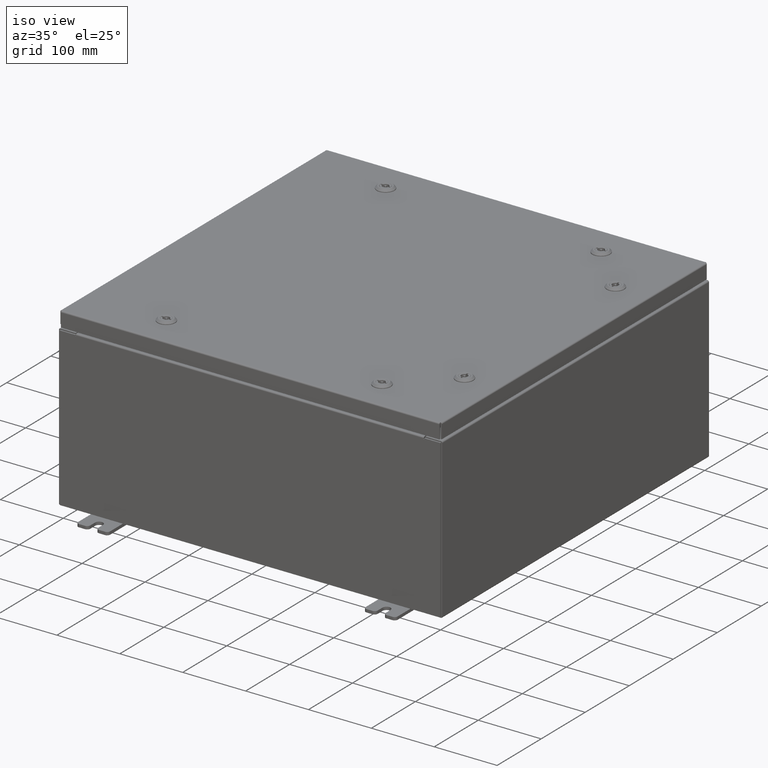
[diagram: clean part render]
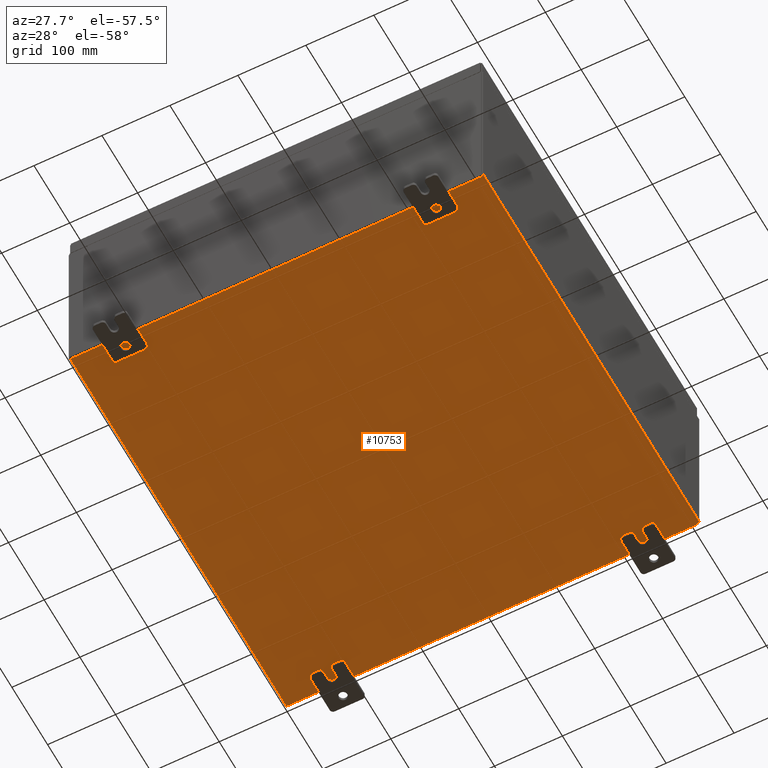
[diagram: tour spotlight — one face highlighted and labeled with its STEP entity id]
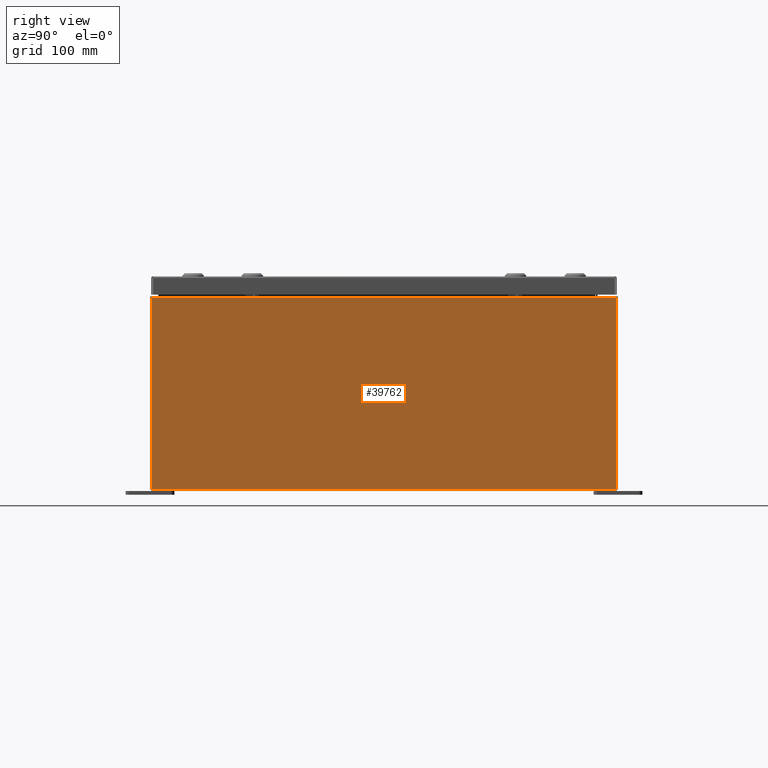
[diagram: tour spotlight — one face highlighted and labeled with its STEP entity id]
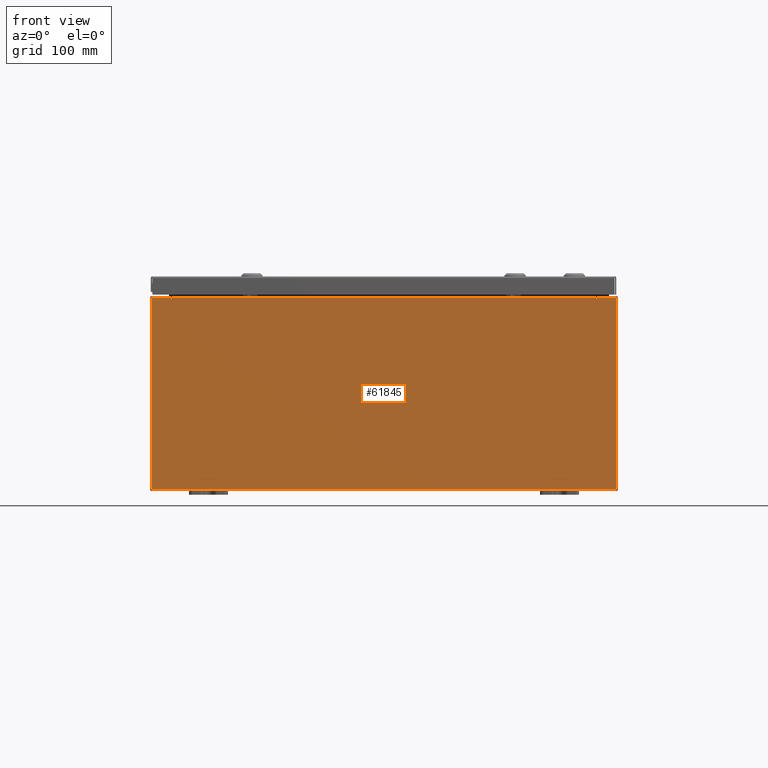
[diagram: tour spotlight — one face highlighted and labeled with its STEP entity id]
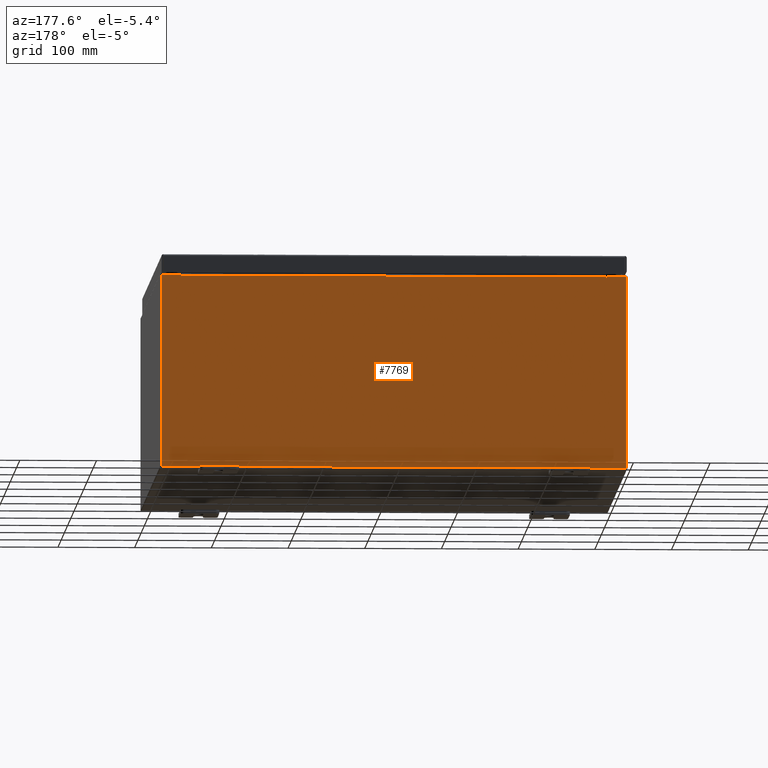
[diagram: tour spotlight — one face highlighted and labeled with its STEP entity id]
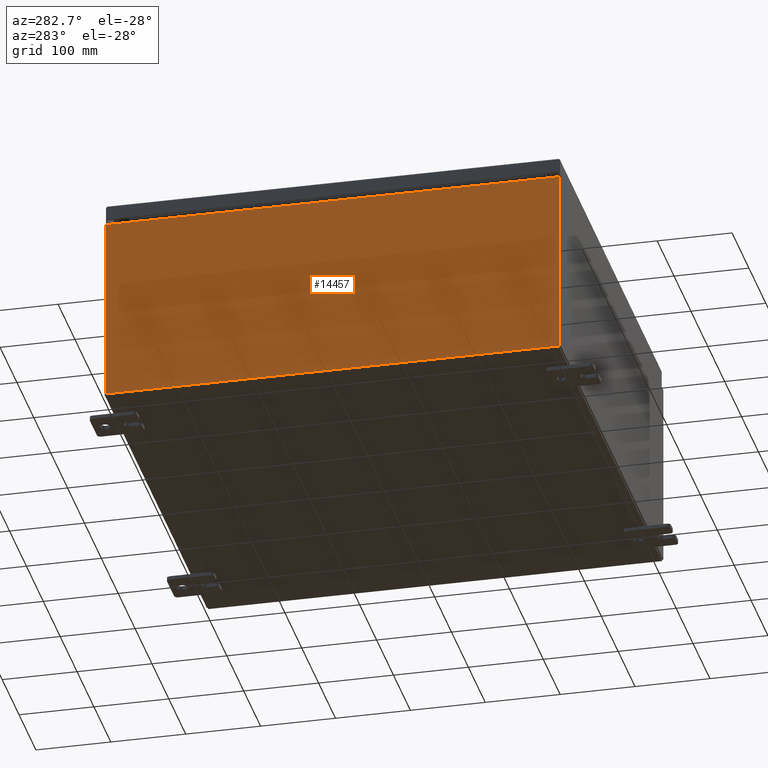
[diagram: tour spotlight — one face highlighted and labeled with its STEP entity id]
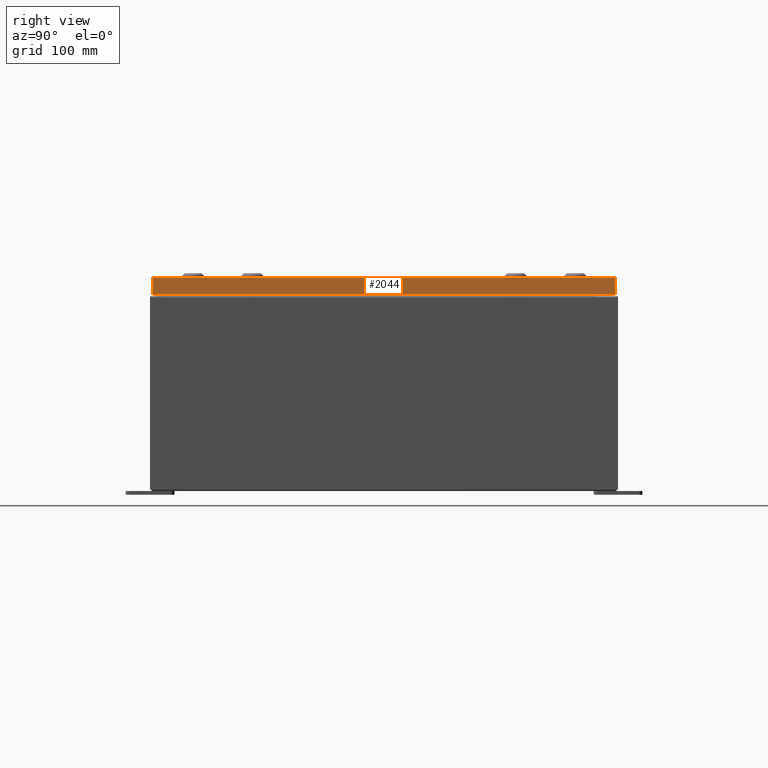
[diagram: tour spotlight — one face highlighted and labeled with its STEP entity id]
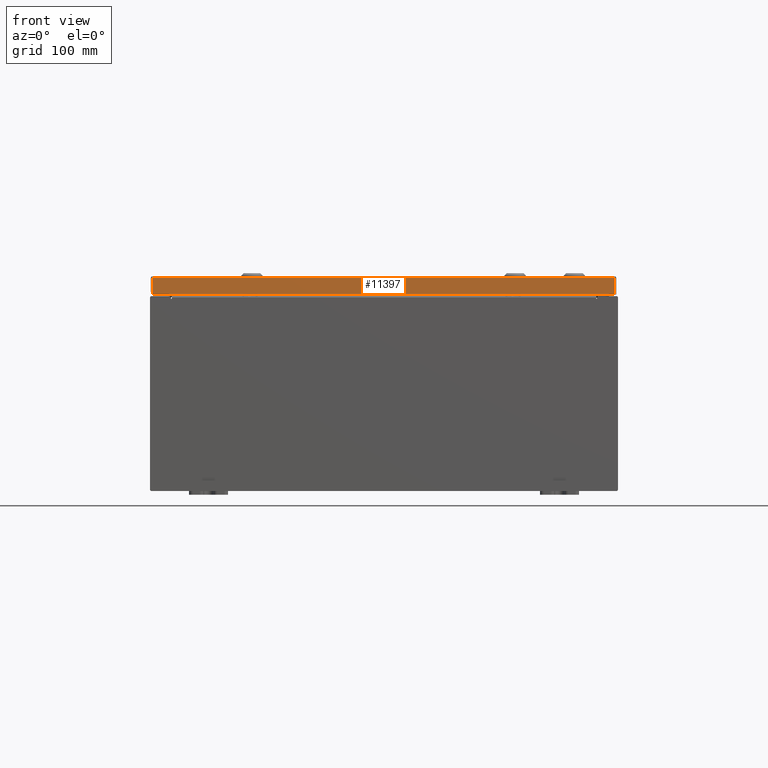
[diagram: tour spotlight — one face highlighted and labeled with its STEP entity id]
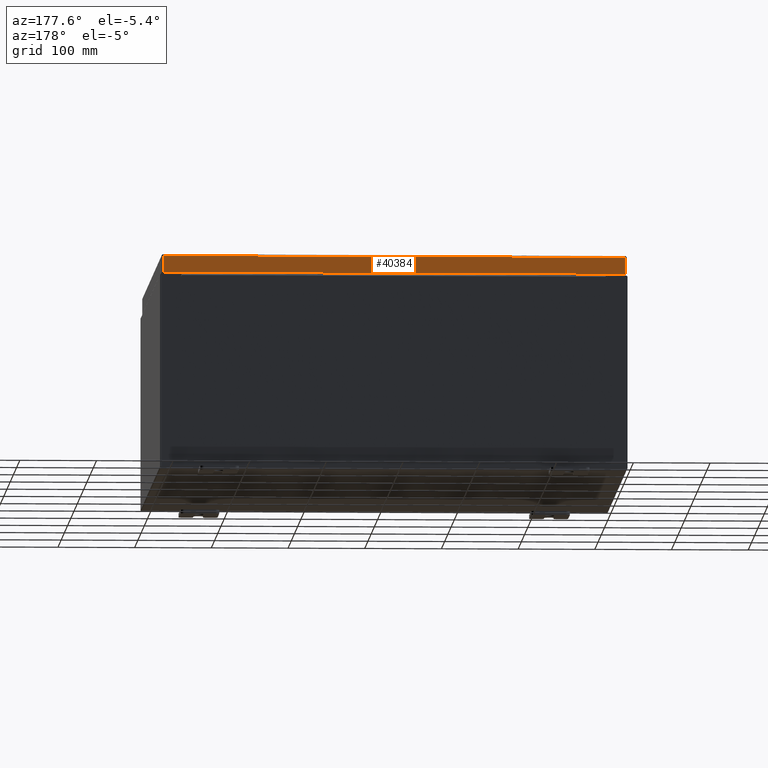
[diagram: tour spotlight — one face highlighted and labeled with its STEP entity id]
A machine part: a face-by-face anatomy tour. The part has 5420 B-rep faces; the first image is the clean iso view, then the 8 largest visible faces are spotlighted one at a time (largest first), each with its STEP entity span.

Face 1 — auxiliary view, entity #10753. In plain terms, the highlighted planar face has unit normal (0, 0, -1).
Definition (entity closure, byte-faithful):
#2110 = ORIENTED_EDGE ( 'NONE', *, *, #20622, .T. ) ;
#6040 = EDGE_CURVE ( 'NONE', #26476, #6079, #46606, .T. ) ;
#6079 = VERTEX_POINT ( 'NONE', #33568 ) ;
#6168 = DIRECTION ( 'NONE',  ( -1.000000000000000000, 0.0000000000000000000, -0.0000000000000000000 ) ) ;
#10496 = VECTOR ( 'NONE', #33818, 39.37007874015748100 ) ;
#10753 = ADVANCED_FACE ( 'NONE', ( #19597 ), #50120, .T. ) ;
#15869 = CARTESIAN_POINT ( 'NONE',  ( 0.0000000000000000000, 0.0000000000000000000, -0.07470000000000000300 ) ) ;
#18428 = VERTEX_POINT ( 'NONE', #48761 ) ;
#19597 = FACE_OUTER_BOUND ( 'NONE', #58767, .T. ) ;
#20051 = VECTOR ( 'NONE', #47949, 39.37007874015748100 ) ;
#20622 = EDGE_CURVE ( 'NONE', #26476, #18428, #59128, .T. ) ;
#22107 = CARTESIAN_POINT ( 'NONE',  ( -11.91230000000000400, -11.92530000000000000, -0.07469999999999994700 ) ) ;
#22382 = VECTOR ( 'NONE', #30771, 39.37007874015748100 ) ;
#23558 = LINE ( 'NONE', #63152, #10496 ) ;
#26476 = VERTEX_POINT ( 'NONE', #22107 ) ;
#26741 = CARTESIAN_POINT ( 'NONE',  ( 11.91229999999999800, 11.92529999999999800, -0.07469999999999994700 ) ) ;
#28900 = CARTESIAN_POINT ( 'NONE',  ( -12.00000000000000400, -11.92530000000000400, -0.07470000000000000300 ) ) ;
#29284 = LINE ( 'NONE', #26741, #22382 ) ;
#30771 = DIRECTION ( 'NONE',  ( -0.0000000000000000000, -1.000000000000000000, -0.0000000000000000000 ) ) ;
#30813 = DIRECTION ( 'NONE',  ( 1.000000000000000000, 0.0000000000000000000, 0.0000000000000000000 ) ) ;
#33031 = ORIENTED_EDGE ( 'NONE', *, *, #6040, .F. ) ;
#33568 = CARTESIAN_POINT ( 'NONE',  ( 11.91229999999998900, -11.92530000000000400, -0.07470000000000000300 ) ) ;
#33818 = DIRECTION ( 'NONE',  ( -1.000000000000000000, -0.0000000000000000000, -0.0000000000000000000 ) ) ;
#35540 = DIRECTION ( 'NONE',  ( 0.0000000000000000000, 0.0000000000000000000, -1.000000000000000000 ) ) ;
#36619 = VECTOR ( 'NONE', #30813, 39.37007874015748100 ) ;
#42184 = EDGE_CURVE ( 'NONE', #53961, #18428, #23558, .T. ) ;
#46606 = LINE ( 'NONE', #28900, #36619 ) ;
#46692 = ORIENTED_EDGE ( 'NONE', *, *, #47940, .T. ) ;
#47940 = EDGE_CURVE ( 'NONE', #53961, #6079, #29284, .T. ) ;
#47949 = DIRECTION ( 'NONE',  ( -0.0000000000000000000, 1.000000000000000000, -0.0000000000000000000 ) ) ;
#48761 = CARTESIAN_POINT ( 'NONE',  ( -11.91230000000000400, 11.92529999999999800, -0.07470000000000000300 ) ) ;
#50120 = PLANE ( 'NONE',  #58706 ) ;
#52897 = CARTESIAN_POINT ( 'NONE',  ( -11.91230000000000400, -11.92530000000000400, -0.07469999999999994700 ) ) ;
#53961 = VERTEX_POINT ( 'NONE', #63209 ) ;
#58706 = AXIS2_PLACEMENT_3D ( 'NONE', #15869, #35540, #6168 ) ;
#58767 = EDGE_LOOP ( 'NONE', ( #33031, #2110, #59097, #46692 ) ) ;
#59097 = ORIENTED_EDGE ( 'NONE', *, *, #42184, .F. ) ;
#59128 = LINE ( 'NONE', #52897, #20051 ) ;
#63152 = CARTESIAN_POINT ( 'NONE',  ( -12.00000000000000400, 11.92529999999999800, -0.07470000000000000300 ) ) ;
#63209 = CARTESIAN_POINT ( 'NONE',  ( 11.91229999999999800, 11.92529999999999600, -0.07469999999999994700 ) ) ;

Face 2 — right view, entity #39762. In plain terms, the highlighted planar face has unit normal (-1, 0, 0).
Definition (entity closure, byte-faithful):
#584 = LINE ( 'NONE', #48699, #12136 ) ;
#602 = CARTESIAN_POINT ( 'NONE',  ( 12.00000000000003400, 11.92529999999999600, 9.837599999999993000 ) ) ;
#5124 = DIRECTION ( 'NONE',  ( -3.523082860860888200E-015, 0.0000000000000000000, -1.000000000000000000 ) ) ;
#5744 = EDGE_CURVE ( 'NONE', #54195, #11226, #584, .T. ) ;
#11226 = VERTEX_POINT ( 'NONE', #15118 ) ;
#11494 = DIRECTION ( 'NONE',  ( 3.523082860860887800E-015, 0.0000000000000000000, 1.000000000000000000 ) ) ;
#12136 = VECTOR ( 'NONE', #42755, 39.37007874015748100 ) ;
#12846 = VERTEX_POINT ( 'NONE', #18539 ) ;
#15118 = CARTESIAN_POINT ( 'NONE',  ( 12.00000000000003400, -11.92530000000000400, 9.837600000000000100 ) ) ;
#17288 = AXIS2_PLACEMENT_3D ( 'NONE', #21126, #40810, #11494 ) ;
#17649 = VERTEX_POINT ( 'NONE', #28373 ) ;
#18539 = CARTESIAN_POINT ( 'NONE',  ( 11.99999999999999800, -11.92530000000000400, 0.01299999999999984300 ) ) ;
#19803 = LINE ( 'NONE', #28776, #45827 ) ;
#20160 = ORIENTED_EDGE ( 'NONE', *, *, #48205, .F. ) ;
#21126 = CARTESIAN_POINT ( 'NONE',  ( 11.99999999999999800, 0.0000000000000000000, -4.253780798634222800E-014 ) ) ;
#21583 = VECTOR ( 'NONE', #38544, 39.37007874015748100 ) ;
#22246 = VECTOR ( 'NONE', #5124, 39.37007874015748100 ) ;
#26102 = PLANE ( 'NONE',  #17288 ) ;
#28373 = CARTESIAN_POINT ( 'NONE',  ( 11.99999999999999800, 11.92529999999999600, 0.01299999999999984700 ) ) ;
#28776 = CARTESIAN_POINT ( 'NONE',  ( 11.99999999999999800, 11.92529999999999800, -3.991194423380320200E-014 ) ) ;
#34503 = CARTESIAN_POINT ( 'NONE',  ( 11.99999999999999800, -11.92530000000000400, -4.253780798634222800E-014 ) ) ;
#38031 = EDGE_CURVE ( 'NONE', #11226, #12846, #48287, .T. ) ;
#38544 = DIRECTION ( 'NONE',  ( -0.0000000000000000000, -1.000000000000000000, -0.0000000000000000000 ) ) ;
#39762 = ADVANCED_FACE ( 'NONE', ( #45888 ), #26102, .F. ) ;
#40810 = DIRECTION ( 'NONE',  ( -1.000000000000000000, 0.0000000000000000000, 3.523082860860887800E-015 ) ) ;
#42755 = DIRECTION ( 'NONE',  ( -0.0000000000000000000, -1.000000000000000000, -0.0000000000000000000 ) ) ;
#44164 = EDGE_LOOP ( 'NONE', ( #49398, #59534, #20160, #55363 ) ) ;
#45827 = VECTOR ( 'NONE', #63006, 39.37007874015748100 ) ;
#45888 = FACE_OUTER_BOUND ( 'NONE', #44164, .T. ) ;
#48205 = EDGE_CURVE ( 'NONE', #17649, #12846, #60661, .T. ) ;
#48287 = LINE ( 'NONE', #34503, #22246 ) ;
#48699 = CARTESIAN_POINT ( 'NONE',  ( 12.00000000000003400, 11.92529999999999800, 9.837599999999993000 ) ) ;
#49398 = ORIENTED_EDGE ( 'NONE', *, *, #5744, .T. ) ;
#54195 = VERTEX_POINT ( 'NONE', #602 ) ;
#55363 = ORIENTED_EDGE ( 'NONE', *, *, #56873, .T. ) ;
#56873 = EDGE_CURVE ( 'NONE', #17649, #54195, #19803, .T. ) ;
#58067 = CARTESIAN_POINT ( 'NONE',  ( 11.99999999999999800, -11.92530000000000400, 0.01299999999999984700 ) ) ;
#59534 = ORIENTED_EDGE ( 'NONE', *, *, #38031, .T. ) ;
#60661 = LINE ( 'NONE', #58067, #21583 ) ;
#63006 = DIRECTION ( 'NONE',  ( 3.523082860860888200E-015, -2.201926788038055100E-016, 1.000000000000000000 ) ) ;

Face 3 — front view, entity #61845. In plain terms, the highlighted planar face has unit normal (-0, 1, -0).
Definition (entity closure, byte-faithful):
#289 = VERTEX_POINT ( 'NONE', #57623 ) ;
#504 = VECTOR ( 'NONE', #31224, 39.37007874015748100 ) ;
#664 = VERTEX_POINT ( 'NONE', #13163 ) ;
#1505 = ORIENTED_EDGE ( 'NONE', *, *, #50837, .T. ) ;
#1883 = EDGE_CURVE ( 'NONE', #43588, #664, #16989, .T. ) ;
#2341 = EDGE_CURVE ( 'NONE', #10516, #55766, #45283, .T. ) ;
#2988 = EDGE_CURVE ( 'NONE', #664, #16884, #13867, .T. ) ;
#4452 = VECTOR ( 'NONE', #35303, 39.37007874015748100 ) ;
#4716 = AXIS2_PLACEMENT_3D ( 'NONE', #17925, #52209, #22867 ) ;
#4935 = EDGE_CURVE ( 'NONE', #16884, #19532, #35145, .T. ) ;
#5121 = LINE ( 'NONE', #44922, #55750 ) ;
#6169 = VECTOR ( 'NONE', #12117, 39.37007874015748100 ) ;
#10426 = DIRECTION ( 'NONE',  ( -0.0000000000000000000, 1.000000000000000000, -0.0000000000000000000 ) ) ;
#10516 = VERTEX_POINT ( 'NONE', #43934 ) ;
#12117 = DIRECTION ( 'NONE',  ( 0.0000000000000000000, 0.0000000000000000000, 1.000000000000000000 ) ) ;
#12306 = VERTEX_POINT ( 'NONE', #55695 ) ;
#12582 = VECTOR ( 'NONE', #45687, 39.37007874015748100 ) ;
#12785 = ORIENTED_EDGE ( 'NONE', *, *, #2988, .T. ) ;
#13163 = CARTESIAN_POINT ( 'NONE',  ( 11.92530000000000000, 0.0000000000000000000, -4.925300000000000000 ) ) ;
#13612 = LINE ( 'NONE', #45771, #504 ) ;
#13867 = LINE ( 'NONE', #44100, #49858 ) ;
#14140 = CARTESIAN_POINT ( 'NONE',  ( 10.92455000000000000, 0.0000000000000000000, 4.874950000000000100 ) ) ;
#14352 = ORIENTED_EDGE ( 'NONE', *, *, #1883, .T. ) ;
#14500 = VERTEX_POINT ( 'NONE', #57401 ) ;
#14505 = CARTESIAN_POINT ( 'NONE',  ( -11.92530000000000000, 0.0000000000000000000, 4.925300000000000000 ) ) ;
#16151 = CARTESIAN_POINT ( 'NONE',  ( -10.88720000000000000, -7.171100983368691200E-016, 4.912300000000000100 ) ) ;
#16884 = VERTEX_POINT ( 'NONE', #19077 ) ;
#16989 = LINE ( 'NONE', #29562, #28506 ) ;
#17925 = CARTESIAN_POINT ( 'NONE',  ( -10.90587500000000000, 0.0000000000000000000, 4.874950000000000100 ) ) ;
#19077 = CARTESIAN_POINT ( 'NONE',  ( -11.92530000000000000, 0.0000000000000000000, -4.925300000000000000 ) ) ;
#19532 = VERTEX_POINT ( 'NONE', #60483 ) ;
#21240 = DIRECTION ( 'NONE',  ( -4.340572780400004900E-014, 0.0000000000000000000, -1.000000000000000000 ) ) ;
#21606 = CARTESIAN_POINT ( 'NONE',  ( 0.0000000000000000000, 0.0000000000000000000, 0.0000000000000000000 ) ) ;
#22677 = DIRECTION ( 'NONE',  ( 1.000000000000000000, 0.0000000000000000000, 0.0000000000000000000 ) ) ;
#22867 = DIRECTION ( 'NONE',  ( 0.0000000000000000000, 0.0000000000000000000, -1.000000000000000000 ) ) ;
#23396 = VECTOR ( 'NONE', #58588, 39.37007874015748100 ) ;
#23610 = EDGE_CURVE ( 'NONE', #41697, #55766, #62031, .T. ) ;
#24927 = ORIENTED_EDGE ( 'NONE', *, *, #23610, .T. ) ;
#25135 = VERTEX_POINT ( 'NONE', #14140 ) ;
#25493 = ORIENTED_EDGE ( 'NONE', *, *, #59438, .F. ) ;
#25721 = ORIENTED_EDGE ( 'NONE', *, *, #35131, .F. ) ;
#26705 = VECTOR ( 'NONE', #21240, 39.37007874015748100 ) ;
#28506 = VECTOR ( 'NONE', #44656, 39.37007874015748100 ) ;
#28695 = LINE ( 'NONE', #30929, #12582 ) ;
#28719 = ORIENTED_EDGE ( 'NONE', *, *, #52170, .T. ) ;
#29089 = ORIENTED_EDGE ( 'NONE', *, *, #4935, .T. ) ;
#29562 = CARTESIAN_POINT ( 'NONE',  ( 11.92530000000000000, 0.0000000000000000000, 4.925300000000000000 ) ) ;
#29731 = ORIENTED_EDGE ( 'NONE', *, *, #41058, .F. ) ;
#30929 = CARTESIAN_POINT ( 'NONE',  ( -11.92530000000000000, 0.0000000000000000000, 4.925300000000000000 ) ) ;
#31224 = DIRECTION ( 'NONE',  ( 0.0000000000000000000, 0.0000000000000000000, 1.000000000000000000 ) ) ;
#31450 = DIRECTION ( 'NONE',  ( 0.0000000000000000000, -0.0000000000000000000, -1.000000000000000000 ) ) ;
#32383 = CIRCLE ( 'NONE', #4716, 0.01867499999999949400 ) ;
#32767 = CARTESIAN_POINT ( 'NONE',  ( 11.92530000000000000, 0.0000000000000000000, 4.925300000000000000 ) ) ;
#34058 = DIRECTION ( 'NONE',  ( -1.000000000000000000, -0.0000000000000000000, -0.0000000000000000000 ) ) ;
#35131 = EDGE_CURVE ( 'NONE', #12306, #14500, #32383, .T. ) ;
#35145 = LINE ( 'NONE', #50865, #4452 ) ;
#35303 = DIRECTION ( 'NONE',  ( -0.0000000000000000000, -0.0000000000000000000, 1.000000000000000000 ) ) ;
#35443 = CARTESIAN_POINT ( 'NONE',  ( 10.88720000000000200, 0.0000000000000000000, 4.912300000000000100 ) ) ;
#36100 = CIRCLE ( 'NONE', #43775, 0.01867499999999949400 ) ;
#36371 = LINE ( 'NONE', #14505, #23396 ) ;
#36704 = EDGE_CURVE ( 'NONE', #25135, #10516, #36100, .T. ) ;
#39739 = ORIENTED_EDGE ( 'NONE', *, *, #59582, .F. ) ;
#39742 = CARTESIAN_POINT ( 'NONE',  ( 10.90587500000000200, 0.0000000000000000000, 4.874950000000000100 ) ) ;
#41058 = EDGE_CURVE ( 'NONE', #289, #25135, #52741, .T. ) ;
#41697 = VERTEX_POINT ( 'NONE', #16151 ) ;
#42347 = CARTESIAN_POINT ( 'NONE',  ( -10.88720000000000200, -7.171100983368691200E-016, 4.912300000000000100 ) ) ;
#43588 = VERTEX_POINT ( 'NONE', #32767 ) ;
#43775 = AXIS2_PLACEMENT_3D ( 'NONE', #39742, #10426, #44682 ) ;
#43934 = CARTESIAN_POINT ( 'NONE',  ( 10.88720000000000200, 0.0000000000000000000, 4.874950000000000100 ) ) ;
#44100 = CARTESIAN_POINT ( 'NONE',  ( -11.92530000000000000, 0.0000000000000000000, -4.925300000000000000 ) ) ;
#44656 = DIRECTION ( 'NONE',  ( 0.0000000000000000000, 0.0000000000000000000, -1.000000000000000000 ) ) ;
#44682 = DIRECTION ( 'NONE',  ( 0.0000000000000000000, 0.0000000000000000000, -1.000000000000000000 ) ) ;
#44847 = EDGE_LOOP ( 'NONE', ( #39739, #25721, #25493, #24927, #47060, #49837, #29731, #28719, #14352, #12785, #29089, #1505 ) ) ;
#44867 = CARTESIAN_POINT ( 'NONE',  ( -10.92454999999999800, 0.0000000000000000000, 4.925300000000000000 ) ) ;
#44922 = CARTESIAN_POINT ( 'NONE',  ( -10.88720000000000000, -0.0000000000000000000, 0.0000000000000000000 ) ) ;
#45283 = LINE ( 'NONE', #47348, #6169 ) ;
#45576 = VERTEX_POINT ( 'NONE', #44867 ) ;
#45687 = DIRECTION ( 'NONE',  ( 1.000000000000000000, 0.0000000000000000000, 0.0000000000000000000 ) ) ;
#45771 = CARTESIAN_POINT ( 'NONE',  ( -10.92454999999999800, -0.0000000000000000000, 0.0000000000000000000 ) ) ;
#47060 = ORIENTED_EDGE ( 'NONE', *, *, #2341, .F. ) ;
#47348 = CARTESIAN_POINT ( 'NONE',  ( 10.88720000000000200, 0.0000000000000000000, 0.0000000000000000000 ) ) ;
#48459 = AXIS2_PLACEMENT_3D ( 'NONE', #21606, #60788, #31450 ) ;
#49837 = ORIENTED_EDGE ( 'NONE', *, *, #36704, .F. ) ;
#49858 = VECTOR ( 'NONE', #34058, 39.37007874015748100 ) ;
#50837 = EDGE_CURVE ( 'NONE', #19532, #45576, #36371, .T. ) ;
#50865 = CARTESIAN_POINT ( 'NONE',  ( -11.92530000000000000, 0.0000000000000000000, 4.925300000000000000 ) ) ;
#52170 = EDGE_CURVE ( 'NONE', #289, #43588, #28695, .T. ) ;
#52209 = DIRECTION ( 'NONE',  ( -0.0000000000000000000, 1.000000000000000000, -0.0000000000000000000 ) ) ;
#52741 = LINE ( 'NONE', #55280, #26705 ) ;
#55280 = CARTESIAN_POINT ( 'NONE',  ( 10.92454999999978900, -0.0000000000000000000, -4.741880436811796300E-013 ) ) ;
#55695 = CARTESIAN_POINT ( 'NONE',  ( -10.88720000000000000, -0.0000000000000000000, 4.874950000000000100 ) ) ;
#55750 = VECTOR ( 'NONE', #59707, 39.37007874015748100 ) ;
#55766 = VERTEX_POINT ( 'NONE', #35443 ) ;
#55862 = PLANE ( 'NONE',  #48459 ) ;
#57401 = CARTESIAN_POINT ( 'NONE',  ( -10.92454999999999800, 0.0000000000000000000, 4.874950000000000100 ) ) ;
#57623 = CARTESIAN_POINT ( 'NONE',  ( 10.92455000000000000, 0.0000000000000000000, 4.925300000000000000 ) ) ;
#58588 = DIRECTION ( 'NONE',  ( 1.000000000000000000, 0.0000000000000000000, 0.0000000000000000000 ) ) ;
#59429 = FACE_OUTER_BOUND ( 'NONE', #44847, .T. ) ;
#59438 = EDGE_CURVE ( 'NONE', #41697, #12306, #5121, .T. ) ;
#59582 = EDGE_CURVE ( 'NONE', #14500, #45576, #13612, .T. ) ;
#59707 = DIRECTION ( 'NONE',  ( 0.0000000000000000000, 0.0000000000000000000, -1.000000000000000000 ) ) ;
#60483 = CARTESIAN_POINT ( 'NONE',  ( -11.92530000000000000, 0.0000000000000000000, 4.925300000000000000 ) ) ;
#60493 = VECTOR ( 'NONE', #22677, 39.37007874015748100 ) ;
#60788 = DIRECTION ( 'NONE',  ( 0.0000000000000000000, -1.000000000000000000, 0.0000000000000000000 ) ) ;
#61845 = ADVANCED_FACE ( 'NONE', ( #59429 ), #55862, .F. ) ;
#62031 = LINE ( 'NONE', #42347, #60493 ) ;

Face 4 — auxiliary view, entity #7769. In plain terms, the highlighted planar face has unit normal (0, -1, 0).
Definition (entity closure, byte-faithful):
#672 = EDGE_CURVE ( 'NONE', #37518, #62439, #47018, .T. ) ;
#1934 = VERTEX_POINT ( 'NONE', #23382 ) ;
#2333 = LINE ( 'NONE', #30189, #39914 ) ;
#3003 = CARTESIAN_POINT ( 'NONE',  ( -11.92530000000000000, 0.0000000000000000000, 4.925300000000000000 ) ) ;
#3139 = DIRECTION ( 'NONE',  ( 0.0000000000000000000, 0.0000000000000000000, 1.000000000000000000 ) ) ;
#3921 = DIRECTION ( 'NONE',  ( -0.0000000000000000000, -0.0000000000000000000, 1.000000000000000000 ) ) ;
#4897 = CARTESIAN_POINT ( 'NONE',  ( 0.0000000000000000000, 0.0000000000000000000, 0.0000000000000000000 ) ) ;
#5494 = DIRECTION ( 'NONE',  ( -1.000000000000000000, -0.0000000000000000000, -0.0000000000000000000 ) ) ;
#6306 = CARTESIAN_POINT ( 'NONE',  ( -10.88720000000000000, -0.0000000000000000000, 0.0000000000000000000 ) ) ;
#7769 = ADVANCED_FACE ( 'NONE', ( #38043 ), #39392, .F. ) ;
#7902 = VECTOR ( 'NONE', #38177, 39.37007874015748100 ) ;
#10149 = LINE ( 'NONE', #60902, #62260 ) ;
#11280 = CARTESIAN_POINT ( 'NONE',  ( -10.88720000000000200, -7.171100983368691200E-016, 4.912300000000000100 ) ) ;
#11655 = CARTESIAN_POINT ( 'NONE',  ( 10.88720000000000200, 0.0000000000000000000, 4.874950000000000100 ) ) ;
#12675 = AXIS2_PLACEMENT_3D ( 'NONE', #4897, #49272, #19951 ) ;
#13895 = LINE ( 'NONE', #11280, #38372 ) ;
#13903 = ORIENTED_EDGE ( 'NONE', *, *, #672, .F. ) ;
#14177 = CARTESIAN_POINT ( 'NONE',  ( -10.88720000000000000, -0.0000000000000000000, 4.874950000000000100 ) ) ;
#14972 = VECTOR ( 'NONE', #3921, 39.37007874015748100 ) ;
#16021 = CARTESIAN_POINT ( 'NONE',  ( -10.92454999999999800, 0.0000000000000000000, 4.925300000000000000 ) ) ;
#17531 = CARTESIAN_POINT ( 'NONE',  ( 11.92530000000000000, 0.0000000000000000000, -4.925300000000000000 ) ) ;
#17772 = VECTOR ( 'NONE', #40610, 39.37007874015748100 ) ;
#18079 = VERTEX_POINT ( 'NONE', #17531 ) ;
#18727 = ORIENTED_EDGE ( 'NONE', *, *, #36956, .T. ) ;
#19596 = EDGE_CURVE ( 'NONE', #63114, #22496, #10149, .T. ) ;
#19951 = DIRECTION ( 'NONE',  ( 0.0000000000000000000, -0.0000000000000000000, -1.000000000000000000 ) ) ;
#20598 = VECTOR ( 'NONE', #36272, 39.37007874015748100 ) ;
#20703 = ORIENTED_EDGE ( 'NONE', *, *, #47911, .F. ) ;
#20783 = DIRECTION ( 'NONE',  ( -0.0000000000000000000, 1.000000000000000000, -0.0000000000000000000 ) ) ;
#21510 = ORIENTED_EDGE ( 'NONE', *, *, #38529, .F. ) ;
#21912 = VECTOR ( 'NONE', #57118, 39.37007874015748100 ) ;
#22251 = CARTESIAN_POINT ( 'NONE',  ( -11.92530000000000000, 0.0000000000000000000, 4.925300000000000000 ) ) ;
#22496 = VERTEX_POINT ( 'NONE', #16021 ) ;
#22861 = CARTESIAN_POINT ( 'NONE',  ( 11.92530000000000000, 0.0000000000000000000, 4.925300000000000000 ) ) ;
#23382 = CARTESIAN_POINT ( 'NONE',  ( 11.92530000000000000, 0.0000000000000000000, 4.925300000000000000 ) ) ;
#24056 = EDGE_CURVE ( 'NONE', #29902, #22496, #33638, .T. ) ;
#25880 = CARTESIAN_POINT ( 'NONE',  ( 10.92455000000000000, 0.0000000000000000000, 4.874950000000000100 ) ) ;
#26400 = CARTESIAN_POINT ( 'NONE',  ( 10.90587500000000200, 0.0000000000000000000, 4.874950000000000100 ) ) ;
#27125 = ORIENTED_EDGE ( 'NONE', *, *, #19596, .T. ) ;
#27646 = VERTEX_POINT ( 'NONE', #40646 ) ;
#28141 = EDGE_CURVE ( 'NONE', #37518, #1934, #36502, .T. ) ;
#28663 = VERTEX_POINT ( 'NONE', #46889 ) ;
#29902 = VERTEX_POINT ( 'NONE', #35515 ) ;
#30163 = ORIENTED_EDGE ( 'NONE', *, *, #50721, .T. ) ;
#30189 = CARTESIAN_POINT ( 'NONE',  ( -11.92530000000000000, 0.0000000000000000000, -4.925300000000000000 ) ) ;
#30779 = LINE ( 'NONE', #6306, #17772 ) ;
#31283 = DIRECTION ( 'NONE',  ( 0.0000000000000000000, 0.0000000000000000000, -1.000000000000000000 ) ) ;
#31384 = CARTESIAN_POINT ( 'NONE',  ( -10.92454999999999800, -0.0000000000000000000, 0.0000000000000000000 ) ) ;
#31558 = DIRECTION ( 'NONE',  ( 1.000000000000000000, 0.0000000000000000000, 0.0000000000000000000 ) ) ;
#33638 = LINE ( 'NONE', #31384, #20598 ) ;
#34456 = VECTOR ( 'NONE', #3139, 39.37007874015748100 ) ;
#35358 = ORIENTED_EDGE ( 'NONE', *, *, #48414, .T. ) ;
#35515 = CARTESIAN_POINT ( 'NONE',  ( -10.92454999999999800, 0.0000000000000000000, 4.874950000000000100 ) ) ;
#35929 = EDGE_CURVE ( 'NONE', #39735, #29902, #54557, .T. ) ;
#36272 = DIRECTION ( 'NONE',  ( 0.0000000000000000000, 0.0000000000000000000, 1.000000000000000000 ) ) ;
#36502 = LINE ( 'NONE', #3003, #51099 ) ;
#36956 = EDGE_CURVE ( 'NONE', #27646, #46648, #13895, .T. ) ;
#37305 = DIRECTION ( 'NONE',  ( 1.000000000000000000, 0.0000000000000000000, 0.0000000000000000000 ) ) ;
#37518 = VERTEX_POINT ( 'NONE', #60049 ) ;
#37580 = VERTEX_POINT ( 'NONE', #11655 ) ;
#38043 = FACE_OUTER_BOUND ( 'NONE', #51057, .T. ) ;
#38177 = DIRECTION ( 'NONE',  ( -4.340572780400004900E-014, 0.0000000000000000000, -1.000000000000000000 ) ) ;
#38372 = VECTOR ( 'NONE', #60326, 39.37007874015748100 ) ;
#38436 = ORIENTED_EDGE ( 'NONE', *, *, #49978, .T. ) ;
#38529 = EDGE_CURVE ( 'NONE', #37580, #46648, #60523, .T. ) ;
#39392 = PLANE ( 'NONE',  #12675 ) ;
#39735 = VERTEX_POINT ( 'NONE', #14177 ) ;
#39914 = VECTOR ( 'NONE', #5494, 39.37007874015748100 ) ;
#40610 = DIRECTION ( 'NONE',  ( 0.0000000000000000000, 0.0000000000000000000, -1.000000000000000000 ) ) ;
#40646 = CARTESIAN_POINT ( 'NONE',  ( -10.88720000000000000, -7.171100983368691200E-016, 4.912300000000000100 ) ) ;
#42376 = CARTESIAN_POINT ( 'NONE',  ( 10.88720000000000200, 0.0000000000000000000, 0.0000000000000000000 ) ) ;
#42522 = LINE ( 'NONE', #43151, #14972 ) ;
#42922 = AXIS2_PLACEMENT_3D ( 'NONE', #50112, #20783, #55063 ) ;
#43151 = CARTESIAN_POINT ( 'NONE',  ( -11.92530000000000000, 0.0000000000000000000, 4.925300000000000000 ) ) ;
#43220 = ORIENTED_EDGE ( 'NONE', *, *, #24056, .F. ) ;
#43778 = CARTESIAN_POINT ( 'NONE',  ( 10.88720000000000200, 0.0000000000000000000, 4.912300000000000100 ) ) ;
#44822 = AXIS2_PLACEMENT_3D ( 'NONE', #26400, #60631, #31283 ) ;
#46648 = VERTEX_POINT ( 'NONE', #43778 ) ;
#46889 = CARTESIAN_POINT ( 'NONE',  ( -11.92530000000000000, 0.0000000000000000000, -4.925300000000000000 ) ) ;
#47018 = LINE ( 'NONE', #48044, #7902 ) ;
#47181 = EDGE_CURVE ( 'NONE', #62439, #37580, #49220, .T. ) ;
#47911 = EDGE_CURVE ( 'NONE', #27646, #39735, #30779, .T. ) ;
#48044 = CARTESIAN_POINT ( 'NONE',  ( 10.92454999999978900, -0.0000000000000000000, -4.741880436811796300E-013 ) ) ;
#48414 = EDGE_CURVE ( 'NONE', #18079, #28663, #2333, .T. ) ;
#49220 = CIRCLE ( 'NONE', #44822, 0.01867499999999949400 ) ;
#49272 = DIRECTION ( 'NONE',  ( 0.0000000000000000000, -1.000000000000000000, 0.0000000000000000000 ) ) ;
#49978 = EDGE_CURVE ( 'NONE', #1934, #18079, #62521, .T. ) ;
#50112 = CARTESIAN_POINT ( 'NONE',  ( -10.90587500000000000, 0.0000000000000000000, 4.874950000000000100 ) ) ;
#50721 = EDGE_CURVE ( 'NONE', #28663, #63114, #42522, .T. ) ;
#51057 = EDGE_LOOP ( 'NONE', ( #43220, #53212, #20703, #18727, #21510, #61328, #13903, #60599, #38436, #35358, #30163, #27125 ) ) ;
#51099 = VECTOR ( 'NONE', #37305, 39.37007874015748100 ) ;
#53212 = ORIENTED_EDGE ( 'NONE', *, *, #35929, .F. ) ;
#54557 = CIRCLE ( 'NONE', #42922, 0.01867499999999949400 ) ;
#55063 = DIRECTION ( 'NONE',  ( 0.0000000000000000000, 0.0000000000000000000, -1.000000000000000000 ) ) ;
#57118 = DIRECTION ( 'NONE',  ( 0.0000000000000000000, 0.0000000000000000000, -1.000000000000000000 ) ) ;
#60049 = CARTESIAN_POINT ( 'NONE',  ( 10.92455000000000000, 0.0000000000000000000, 4.925300000000000000 ) ) ;
#60326 = DIRECTION ( 'NONE',  ( 1.000000000000000000, 0.0000000000000000000, 0.0000000000000000000 ) ) ;
#60523 = LINE ( 'NONE', #42376, #34456 ) ;
#60599 = ORIENTED_EDGE ( 'NONE', *, *, #28141, .T. ) ;
#60631 = DIRECTION ( 'NONE',  ( -0.0000000000000000000, 1.000000000000000000, -0.0000000000000000000 ) ) ;
#60902 = CARTESIAN_POINT ( 'NONE',  ( -11.92530000000000000, 0.0000000000000000000, 4.925300000000000000 ) ) ;
#61328 = ORIENTED_EDGE ( 'NONE', *, *, #47181, .F. ) ;
#62260 = VECTOR ( 'NONE', #31558, 39.37007874015748100 ) ;
#62439 = VERTEX_POINT ( 'NONE', #25880 ) ;
#62521 = LINE ( 'NONE', #22861, #21912 ) ;
#63114 = VERTEX_POINT ( 'NONE', #22251 ) ;

Face 5 — auxiliary view, entity #14457. In plain terms, the highlighted planar face has unit normal (1, 0, 0).
Definition (entity closure, byte-faithful):
#391 = VECTOR ( 'NONE', #55843, 39.37007874015748100 ) ;
#897 = FACE_OUTER_BOUND ( 'NONE', #44601, .T. ) ;
#2436 = VERTEX_POINT ( 'NONE', #57300 ) ;
#3747 = AXIS2_PLACEMENT_3D ( 'NONE', #8105, #52264, #22926 ) ;
#3867 = LINE ( 'NONE', #15421, #42986 ) ;
#4268 = DIRECTION ( 'NONE',  ( 3.523082860860888200E-015, 0.0000000000000000000, -1.000000000000000000 ) ) ;
#8105 = CARTESIAN_POINT ( 'NONE',  ( -12.00000000000000400, 0.0000000000000000000, -4.253780798634224100E-014 ) ) ;
#10442 = ORIENTED_EDGE ( 'NONE', *, *, #49764, .F. ) ;
#10482 = DIRECTION ( 'NONE',  ( -3.523082860860888200E-015, 0.0000000000000000000, 1.000000000000000000 ) ) ;
#13497 = LINE ( 'NONE', #36117, #391 ) ;
#13800 = EDGE_CURVE ( 'NONE', #33305, #40651, #17865, .T. ) ;
#14207 = DIRECTION ( 'NONE',  ( 0.0000000000000000000, 1.000000000000000000, 0.0000000000000000000 ) ) ;
#14457 = ADVANCED_FACE ( 'NONE', ( #897 ), #17984, .F. ) ;
#15421 = CARTESIAN_POINT ( 'NONE',  ( -12.00000000000000400, -11.92530000000000400, -4.253780798634224100E-014 ) ) ;
#17037 = VECTOR ( 'NONE', #4268, 39.37007874015748100 ) ;
#17865 = LINE ( 'NONE', #43507, #55407 ) ;
#17984 = PLANE ( 'NONE',  #3747 ) ;
#19862 = EDGE_CURVE ( 'NONE', #40651, #2436, #41549, .T. ) ;
#22926 = DIRECTION ( 'NONE',  ( 3.523082860860887800E-015, 0.0000000000000000000, -1.000000000000000000 ) ) ;
#26225 = CARTESIAN_POINT ( 'NONE',  ( -12.00000000000000400, -11.92530000000000000, 0.01299999999999984700 ) ) ;
#32409 = CARTESIAN_POINT ( 'NONE',  ( -12.00000000000003700, 11.92529999999999800, 9.837599999999998300 ) ) ;
#33305 = VERTEX_POINT ( 'NONE', #39921 ) ;
#36117 = CARTESIAN_POINT ( 'NONE',  ( -12.00000000000000400, 11.92529999999999800, 0.01299999999999984700 ) ) ;
#39309 = VERTEX_POINT ( 'NONE', #26225 ) ;
#39921 = CARTESIAN_POINT ( 'NONE',  ( -12.00000000000003700, -11.92530000000000000, 9.837599999999998300 ) ) ;
#40651 = VERTEX_POINT ( 'NONE', #32409 ) ;
#41549 = LINE ( 'NONE', #42647, #17037 ) ;
#42647 = CARTESIAN_POINT ( 'NONE',  ( -12.00000000000000400, 11.92529999999999800, -4.253780798634224100E-014 ) ) ;
#42979 = ORIENTED_EDGE ( 'NONE', *, *, #13800, .T. ) ;
#42986 = VECTOR ( 'NONE', #10482, 39.37007874015748100 ) ;
#43507 = CARTESIAN_POINT ( 'NONE',  ( -12.00000000000003700, -11.92530000000000400, 9.837599999999998300 ) ) ;
#44601 = EDGE_LOOP ( 'NONE', ( #42979, #51926, #10442, #54325 ) ) ;
#48393 = EDGE_CURVE ( 'NONE', #39309, #33305, #3867, .T. ) ;
#49764 = EDGE_CURVE ( 'NONE', #39309, #2436, #13497, .T. ) ;
#51926 = ORIENTED_EDGE ( 'NONE', *, *, #19862, .T. ) ;
#52264 = DIRECTION ( 'NONE',  ( 1.000000000000000000, 0.0000000000000000000, 3.523082860860887800E-015 ) ) ;
#54325 = ORIENTED_EDGE ( 'NONE', *, *, #48393, .T. ) ;
#55407 = VECTOR ( 'NONE', #14207, 39.37007874015748100 ) ;
#55843 = DIRECTION ( 'NONE',  ( -0.0000000000000000000, 1.000000000000000000, -0.0000000000000000000 ) ) ;
#57300 = CARTESIAN_POINT ( 'NONE',  ( -12.00000000000000400, 11.92529999999999800, 0.01299999999999984300 ) ) ;

Face 6 — right view, entity #2044. In plain terms, the highlighted planar face has unit normal (1, 0, 0).
Definition (entity closure, byte-faithful):
#810 = DIRECTION ( 'NONE',  ( -2.532419924601866100E-015, -6.982962677686265900E-015, 1.000000000000000000 ) ) ;
#2044 = ADVANCED_FACE ( 'NONE', ( #25435 ), #7213, .T. ) ;
#2467 = CARTESIAN_POINT ( 'NONE',  ( 11.93750000000000000, 11.84865786437626900, 1.132303121535597100E-013 ) ) ;
#6476 = VECTOR ( 'NONE', #50405, 39.37007874015748100 ) ;
#7213 = PLANE ( 'NONE',  #41084 ) ;
#7431 = DIRECTION ( 'NONE',  ( -2.532419924601866100E-015, -6.982962677686265900E-015, 1.000000000000000000 ) ) ;
#9035 = CARTESIAN_POINT ( 'NONE',  ( 11.93750000000000000, 11.84865786437626800, -0.08770000000000008300 ) ) ;
#11001 = VECTOR ( 'NONE', #7431, 39.37007874015748100 ) ;
#15782 = ORIENTED_EDGE ( 'NONE', *, *, #18006, .T. ) ;
#15942 = EDGE_LOOP ( 'NONE', ( #38377, #50366, #15782, #31774 ) ) ;
#17014 = LINE ( 'NONE', #49913, #41515 ) ;
#18006 = EDGE_CURVE ( 'NONE', #25423, #28227, #25611, .T. ) ;
#18812 = VECTOR ( 'NONE', #46253, 39.37007874015748100 ) ;
#21830 = VERTEX_POINT ( 'NONE', #27034 ) ;
#21861 = CARTESIAN_POINT ( 'NONE',  ( 11.93750000000000000, 0.0000000000000000000, -0.08770000000000008300 ) ) ;
#22847 = CARTESIAN_POINT ( 'NONE',  ( 11.93750000000000200, -11.84865786437626200, -0.9376999999999997600 ) ) ;
#25423 = VERTEX_POINT ( 'NONE', #25479 ) ;
#25435 = FACE_OUTER_BOUND ( 'NONE', #15942, .T. ) ;
#25479 = CARTESIAN_POINT ( 'NONE',  ( 11.93750000000000200, 11.84865786437627300, -0.9376999999999997600 ) ) ;
#25611 = LINE ( 'NONE', #2467, #11001 ) ;
#27034 = CARTESIAN_POINT ( 'NONE',  ( 11.93750000000000000, -11.84865786437626900, -0.08770000000000008300 ) ) ;
#28227 = VERTEX_POINT ( 'NONE', #9035 ) ;
#31774 = ORIENTED_EDGE ( 'NONE', *, *, #43419, .T. ) ;
#35895 = EDGE_CURVE ( 'NONE', #57499, #21830, #17014, .T. ) ;
#36035 = CARTESIAN_POINT ( 'NONE',  ( 11.93750000000000200, -11.93750000000000000, -0.9376999999999997600 ) ) ;
#37552 = CARTESIAN_POINT ( 'NONE',  ( 11.93750000000000000, 0.0000000000000000000, 3.049157650594635900E-014 ) ) ;
#38377 = ORIENTED_EDGE ( 'NONE', *, *, #35895, .F. ) ;
#39997 = DIRECTION ( 'NONE',  ( 1.000000000000000000, 0.0000000000000000000, 2.532419924601866100E-015 ) ) ;
#41084 = AXIS2_PLACEMENT_3D ( 'NONE', #37552, #39997, #58181 ) ;
#41515 = VECTOR ( 'NONE', #810, 39.37007874015748100 ) ;
#43419 = EDGE_CURVE ( 'NONE', #28227, #21830, #46380, .T. ) ;
#45592 = LINE ( 'NONE', #36035, #6476 ) ;
#46253 = DIRECTION ( 'NONE',  ( 0.0000000000000000000, -1.000000000000000000, 0.0000000000000000000 ) ) ;
#46380 = LINE ( 'NONE', #21861, #18812 ) ;
#49913 = CARTESIAN_POINT ( 'NONE',  ( 11.93750000000000000, -11.84865786437626900, -0.07469999999999980800 ) ) ;
#50366 = ORIENTED_EDGE ( 'NONE', *, *, #50556, .F. ) ;
#50405 = DIRECTION ( 'NONE',  ( 0.0000000000000000000, -1.000000000000000000, 0.0000000000000000000 ) ) ;
#50556 = EDGE_CURVE ( 'NONE', #25423, #57499, #45592, .T. ) ;
#57499 = VERTEX_POINT ( 'NONE', #22847 ) ;
#58181 = DIRECTION ( 'NONE',  ( 2.532419924601866100E-015, 0.0000000000000000000, -1.000000000000000000 ) ) ;

Face 7 — front view, entity #11397. In plain terms, the highlighted planar face has unit normal (-0, 1, -0).
Definition (entity closure, byte-faithful):
#166 = VECTOR ( 'NONE', #5311, 39.37007874015748100 ) ;
#399 = CARTESIAN_POINT ( 'NONE',  ( 11.93750000000000000, -11.93750000000000000, -0.08770000000000008300 ) ) ;
#2066 = DIRECTION ( 'NONE',  ( 0.0000000000000000000, -2.532419924601866100E-015, -1.000000000000000000 ) ) ;
#4440 = CARTESIAN_POINT ( 'NONE',  ( -11.84865786437626800, -11.93750000000000200, -0.9376999999999967600 ) ) ;
#5311 = DIRECTION ( 'NONE',  ( 1.000000000000000000, 3.187436615352006600E-031, -7.980458346197363700E-046 ) ) ;
#5400 = VECTOR ( 'NONE', #49053, 39.37007874015748100 ) ;
#6461 = VERTEX_POINT ( 'NONE', #53121 ) ;
#8610 = LINE ( 'NONE', #52540, #33142 ) ;
#8840 = ORIENTED_EDGE ( 'NONE', *, *, #48285, .F. ) ;
#9471 = CARTESIAN_POINT ( 'NONE',  ( -11.84865786437626800, -11.93750000000000000, -0.08770000000000008300 ) ) ;
#11397 = ADVANCED_FACE ( 'NONE', ( #54795 ), #50639, .F. ) ;
#13841 = VERTEX_POINT ( 'NONE', #9471 ) ;
#13981 = EDGE_CURVE ( 'NONE', #13841, #29893, #24780, .T. ) ;
#16531 = ORIENTED_EDGE ( 'NONE', *, *, #13981, .F. ) ;
#19984 = VECTOR ( 'NONE', #2066, 39.37007874015748100 ) ;
#20041 = LINE ( 'NONE', #43692, #5400 ) ;
#21299 = DIRECTION ( 'NONE',  ( -3.187436615352006200E-031, 1.000000000000000000, -2.532419924601866100E-015 ) ) ;
#23622 = DIRECTION ( 'NONE',  ( -0.0000000000000000000, -2.532419924601866100E-015, -1.000000000000000000 ) ) ;
#24780 = LINE ( 'NONE', #399, #166 ) ;
#26759 = AXIS2_PLACEMENT_3D ( 'NONE', #35402, #21299, #55552 ) ;
#26760 = VERTEX_POINT ( 'NONE', #4440 ) ;
#29893 = VERTEX_POINT ( 'NONE', #30602 ) ;
#30602 = CARTESIAN_POINT ( 'NONE',  ( 11.84865786437627100, -11.93750000000000000, -0.08770000000000008300 ) ) ;
#31474 = CARTESIAN_POINT ( 'NONE',  ( -11.84865786437626600, -11.93750000000000000, 3.049157650594635900E-014 ) ) ;
#31959 = EDGE_LOOP ( 'NONE', ( #16531, #36407, #8840, #36179 ) ) ;
#33142 = VECTOR ( 'NONE', #23622, 39.37007874015748100 ) ;
#35402 = CARTESIAN_POINT ( 'NONE',  ( 3.805002459576457300E-030, -11.93750000000000000, 3.049157650594635900E-014 ) ) ;
#36179 = ORIENTED_EDGE ( 'NONE', *, *, #53918, .F. ) ;
#36407 = ORIENTED_EDGE ( 'NONE', *, *, #49206, .T. ) ;
#43692 = CARTESIAN_POINT ( 'NONE',  ( 11.93750000000000000, -11.93750000000000200, -0.9376999999999997600 ) ) ;
#48285 = EDGE_CURVE ( 'NONE', #6461, #26760, #20041, .T. ) ;
#49053 = DIRECTION ( 'NONE',  ( -1.000000000000000000, 4.379057701015054300E-047, 1.258652478756310100E-016 ) ) ;
#49206 = EDGE_CURVE ( 'NONE', #13841, #26760, #57537, .T. ) ;
#50639 = PLANE ( 'NONE',  #26759 ) ;
#52540 = CARTESIAN_POINT ( 'NONE',  ( 11.84865786437626900, -11.93750000000000000, -0.07469999999999980800 ) ) ;
#53121 = CARTESIAN_POINT ( 'NONE',  ( 11.84865786437626900, -11.93750000000000200, -0.9376999999999997600 ) ) ;
#53918 = EDGE_CURVE ( 'NONE', #29893, #6461, #8610, .T. ) ;
#54795 = FACE_OUTER_BOUND ( 'NONE', #31959, .T. ) ;
#55552 = DIRECTION ( 'NONE',  ( 0.0000000000000000000, 2.532419924601866100E-015, 1.000000000000000000 ) ) ;
#57537 = LINE ( 'NONE', #31474, #19984 ) ;

Face 8 — auxiliary view, entity #40384. In plain terms, the highlighted planar face has unit normal (0, -1, -0).
Definition (entity closure, byte-faithful):
#3017 = EDGE_LOOP ( 'NONE', ( #58619, #31792, #25661, #54020 ) ) ;
#3264 = LINE ( 'NONE', #24709, #11763 ) ;
#5538 = VERTEX_POINT ( 'NONE', #11048 ) ;
#5676 = CARTESIAN_POINT ( 'NONE',  ( -11.84865786437626600, 11.93750000000000000, -0.08769999999999898700 ) ) ;
#6089 = EDGE_CURVE ( 'NONE', #51744, #5538, #43521, .T. ) ;
#8681 = LINE ( 'NONE', #19614, #59281 ) ;
#11048 = CARTESIAN_POINT ( 'NONE',  ( 11.84865786437626900, 11.93750000000000200, -0.9376999999999997600 ) ) ;
#11763 = VECTOR ( 'NONE', #29605, 39.37007874015748100 ) ;
#13198 = EDGE_CURVE ( 'NONE', #51664, #27814, #8681, .T. ) ;
#15814 = CARTESIAN_POINT ( 'NONE',  ( 11.84865786437626900, 11.93750000000000000, 3.049157650594625800E-014 ) ) ;
#19614 = CARTESIAN_POINT ( 'NONE',  ( -11.93749999999999800, 11.93750000000000000, -0.08770000000000008300 ) ) ;
#20738 = DIRECTION ( 'NONE',  ( 0.0000000000000000000, 2.532419924601857400E-015, -1.000000000000000000 ) ) ;
#24709 = CARTESIAN_POINT ( 'NONE',  ( -11.84865786437626600, 11.93750000000000000, -0.07469999999999980800 ) ) ;
#25101 = DIRECTION ( 'NONE',  ( 3.187436615351995300E-031, -1.000000000000000000, -2.532419924601857400E-015 ) ) ;
#25525 = LINE ( 'NONE', #15814, #36958 ) ;
#25661 = ORIENTED_EDGE ( 'NONE', *, *, #6089, .F. ) ;
#27814 = VERTEX_POINT ( 'NONE', #5676 ) ;
#29605 = DIRECTION ( 'NONE',  ( -0.0000000000000000000, 2.532419924601857400E-015, -1.000000000000000000 ) ) ;
#30493 = VECTOR ( 'NONE', #35349, 39.37007874015748100 ) ;
#31792 = ORIENTED_EDGE ( 'NONE', *, *, #34867, .T. ) ;
#33785 = CARTESIAN_POINT ( 'NONE',  ( -11.93749999999999800, 11.93750000000000200, -0.9377000000000028600 ) ) ;
#34867 = EDGE_CURVE ( 'NONE', #51664, #5538, #25525, .T. ) ;
#34885 = PLANE ( 'NONE',  #39018 ) ;
#34982 = DIRECTION ( 'NONE',  ( -1.000000000000000000, -8.693008950959990500E-032, -9.153836209136798400E-017 ) ) ;
#35349 = DIRECTION ( 'NONE',  ( 1.000000000000000000, -4.379057701015054300E-047, 1.258652478756310100E-016 ) ) ;
#36958 = VECTOR ( 'NONE', #20738, 39.37007874015748100 ) ;
#39018 = AXIS2_PLACEMENT_3D ( 'NONE', #59318, #25101, #39794 ) ;
#39794 = DIRECTION ( 'NONE',  ( 0.0000000000000000000, 2.532419924601857400E-015, -1.000000000000000000 ) ) ;
#40384 = ADVANCED_FACE ( 'NONE', ( #43547 ), #34885, .F. ) ;
#43521 = LINE ( 'NONE', #33785, #30493 ) ;
#43547 = FACE_OUTER_BOUND ( 'NONE', #3017, .T. ) ;
#46030 = CARTESIAN_POINT ( 'NONE',  ( -11.84865786437626600, 11.93750000000000200, -0.9377000000000028600 ) ) ;
#51664 = VERTEX_POINT ( 'NONE', #55267 ) ;
#51744 = VERTEX_POINT ( 'NONE', #46030 ) ;
#52711 = EDGE_CURVE ( 'NONE', #27814, #51744, #3264, .T. ) ;
#54020 = ORIENTED_EDGE ( 'NONE', *, *, #52711, .F. ) ;
#55267 = CARTESIAN_POINT ( 'NONE',  ( 11.84865786437626900, 11.93750000000000000, -0.08769999999999789100 ) ) ;
#58619 = ORIENTED_EDGE ( 'NONE', *, *, #13198, .F. ) ;
#59281 = VECTOR ( 'NONE', #34982, 39.37007874015748100 ) ;
#59318 = CARTESIAN_POINT ( 'NONE',  ( -3.805002459576444600E-030, 11.93750000000000000, 3.049157650594625800E-014 ) ) ;